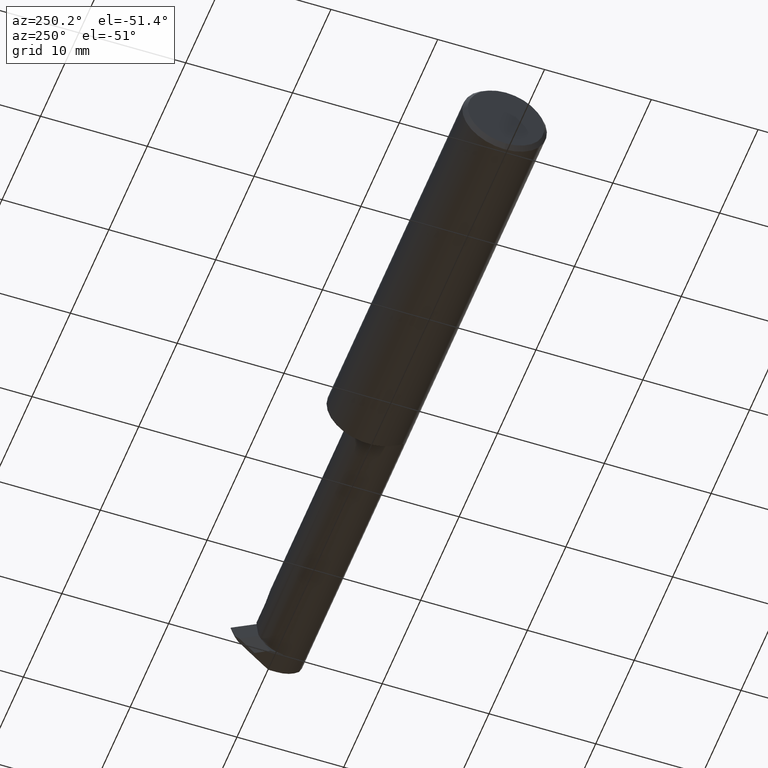
[diagram: clean part render]
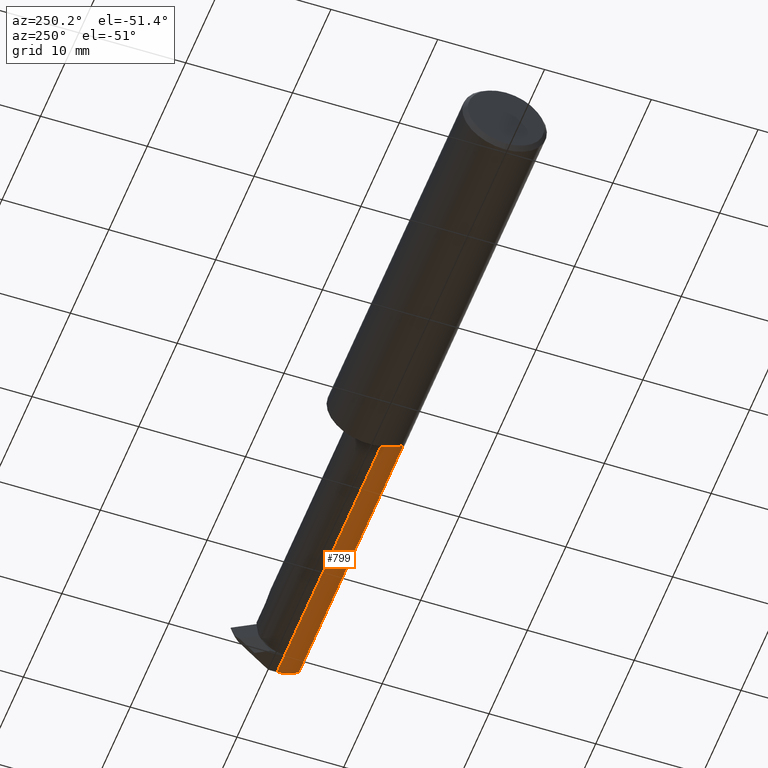
[diagram: same view with one face highlighted and labeled with its STEP entity id]
A machine part, auxiliary view. The second image highlights one B-rep face of the part: STEP entity #799.
In plain terms, the highlighted cylindrical surface (edge-blend (fillet) strip) has radius 2.8194 mm, axis along (-1, -0, -0).
Its self-contained STEP definition (entity closure, byte-faithful):
#57 = EDGE_CURVE ( 'NONE', #903, #234, #893, .T. ) ;
#67 = DIRECTION ( 'NONE',  ( -1.000000000000000000, -0.000000000000000000, -0.000000000000000000 ) ) ;
#98 = CARTESIAN_POINT ( 'NONE',  ( 1.905500000000000194, -0.1368622504537204410, -0.07507286061382698050 ) ) ;
#99 = ORIENTED_EDGE ( 'NONE', *, *, #806, .F. ) ;
#121 = EDGE_CURVE ( 'NONE', #572, #234, #549, .T. ) ;
#141 = CYLINDRICAL_SURFACE ( 'NONE', #942, 0.1110000000000000014 ) ;
#158 = EDGE_CURVE ( 'NONE', #654, #903, #237, .T. ) ;
#159 = VERTEX_POINT ( 'NONE', #684 ) ;
#201 = VECTOR ( 'NONE', #67, 39.37007874015748143 ) ;
#210 = ORIENTED_EDGE ( 'NONE', *, *, #121, .F. ) ;
#216 = DIRECTION ( 'NONE',  ( 1.000000000000000000, 0.000000000000000000, 0.000000000000000000 ) ) ;
#217 = VECTOR ( 'NONE', #847, 39.37007874015748143 ) ;
#218 = DIRECTION ( 'NONE',  ( 0.000000000000000000, 0.000000000000000000, 1.000000000000000000 ) ) ;
#234 = VERTEX_POINT ( 'NONE', #857 ) ;
#237 = LINE ( 'NONE', #98, #217 ) ;
#276 = AXIS2_PLACEMENT_3D ( 'NONE', #306, #216, #508 ) ;
#306 = CARTESIAN_POINT ( 'NONE',  ( 1.429999999999999938, -0.05509999999999999620, 0.000000000000000000 ) ) ;
#330 = CARTESIAN_POINT ( 'NONE',  ( 2.419930999995321574, -0.05510000000000080111, -0.1109999999999999876 ) ) ;
#335 = CARTESIAN_POINT ( 'NONE',  ( 1.405000000000000249, -0.05509999999999998233, -0.1110000000000000014 ) ) ;
#366 = ORIENTED_EDGE ( 'NONE', *, *, #57, .T. ) ;
#379 = FACE_OUTER_BOUND ( 'NONE', #927, .T. ) ;
#428 = DIRECTION ( 'NONE',  ( 1.000000000000000000, -0.000000000000000000, -0.000000000000000000 ) ) ;
#467 = ORIENTED_EDGE ( 'NONE', *, *, #158, .T. ) ;
#486 = CARTESIAN_POINT ( 'NONE',  ( 2.500000000000000000, -0.1368622504537203854, -0.07507286061382703601 ) ) ;
#490 = AXIS2_PLACEMENT_3D ( 'NONE', #723, #428, #218 ) ;
#508 = DIRECTION ( 'NONE',  ( 0.000000000000000000, 0.000000000000000000, -1.000000000000000000 ) ) ;
#509 = CARTESIAN_POINT ( 'NONE',  ( 2.500000000000000000, -0.05510000000000080111, -0.1109999999999999876 ) ) ;
#549 = LINE ( 'NONE', #335, #756 ) ;
#572 = VERTEX_POINT ( 'NONE', #330 ) ;
#578 = CARTESIAN_POINT ( 'NONE',  ( 1.405000000000000249, -0.05509999999999999620, 0.000000000000000000 ) ) ;
#590 = DIRECTION ( 'NONE',  ( -1.000000000000000000, -0.000000000000000000, -0.000000000000000000 ) ) ;
#654 = VERTEX_POINT ( 'NONE', #486 ) ;
#659 = DIRECTION ( 'NONE',  ( 0.000000000000000000, 0.000000000000000000, 1.000000000000000000 ) ) ;
#665 = CARTESIAN_POINT ( 'NONE',  ( 1.429999999999999938, -0.1368622504537204410, -0.07507286061382698050 ) ) ;
#679 = CIRCLE ( 'NONE', #490, 0.1109999999999999876 ) ;
#684 = CARTESIAN_POINT ( 'NONE',  ( 2.500000000000000000, -0.05510000000000080111, -0.1109999999999999876 ) ) ;
#687 = DIRECTION ( 'NONE',  ( -1.000000000000000000, -0.000000000000000000, -0.000000000000000000 ) ) ;
#723 = CARTESIAN_POINT ( 'NONE',  ( 2.500000000000000000, -0.05509999999999999620, 0.000000000000000000 ) ) ;
#756 = VECTOR ( 'NONE', #687, 39.37007874015748143 ) ;
#799 = ADVANCED_FACE ( 'NONE', ( #379 ), #141, .T. ) ;
#806 = EDGE_CURVE ( 'NONE', #654, #159, #679, .T. ) ;
#811 = LINE ( 'NONE', #509, #201 ) ;
#847 = DIRECTION ( 'NONE',  ( -1.000000000000000000, -0.000000000000000000, -0.000000000000000000 ) ) ;
#850 = ORIENTED_EDGE ( 'NONE', *, *, #869, .F. ) ;
#857 = CARTESIAN_POINT ( 'NONE',  ( 1.429999999999999938, -0.05509999999999998233, -0.1110000000000000014 ) ) ;
#869 = EDGE_CURVE ( 'NONE', #159, #572, #811, .T. ) ;
#893 = CIRCLE ( 'NONE', #276, 0.1110000000000000014 ) ;
#903 = VERTEX_POINT ( 'NONE', #665 ) ;
#927 = EDGE_LOOP ( 'NONE', ( #210, #850, #99, #467, #366 ) ) ;
#942 = AXIS2_PLACEMENT_3D ( 'NONE', #578, #590, #659 ) ;